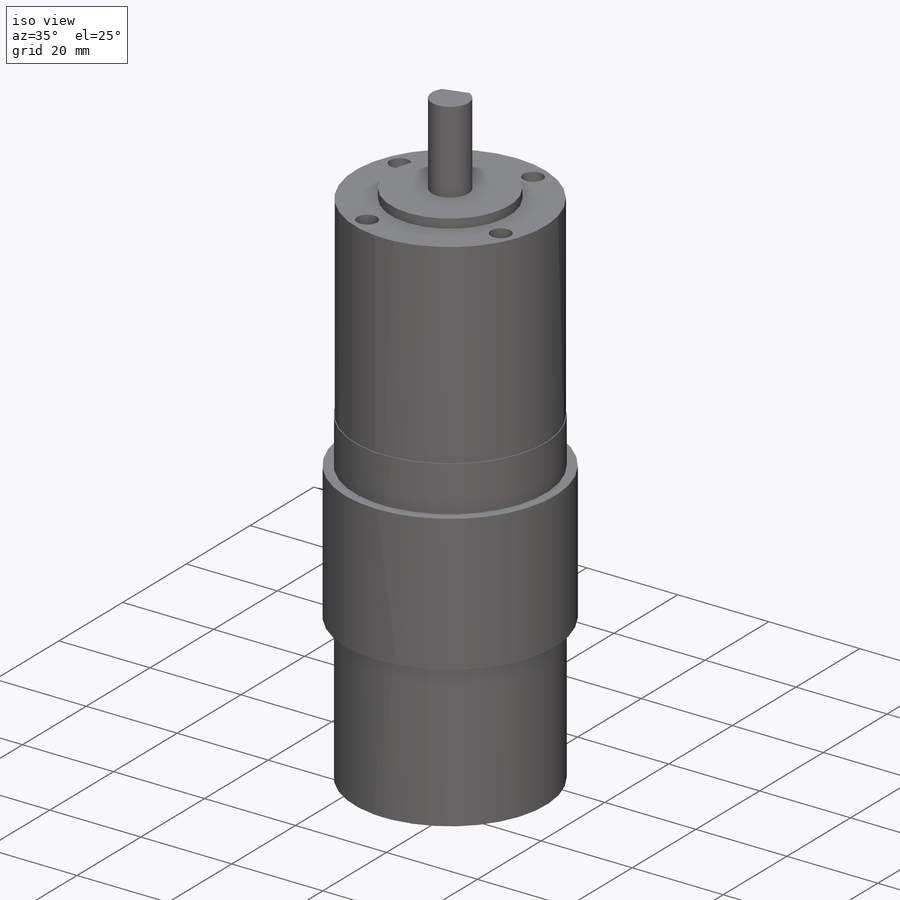
[diagram: iso view]
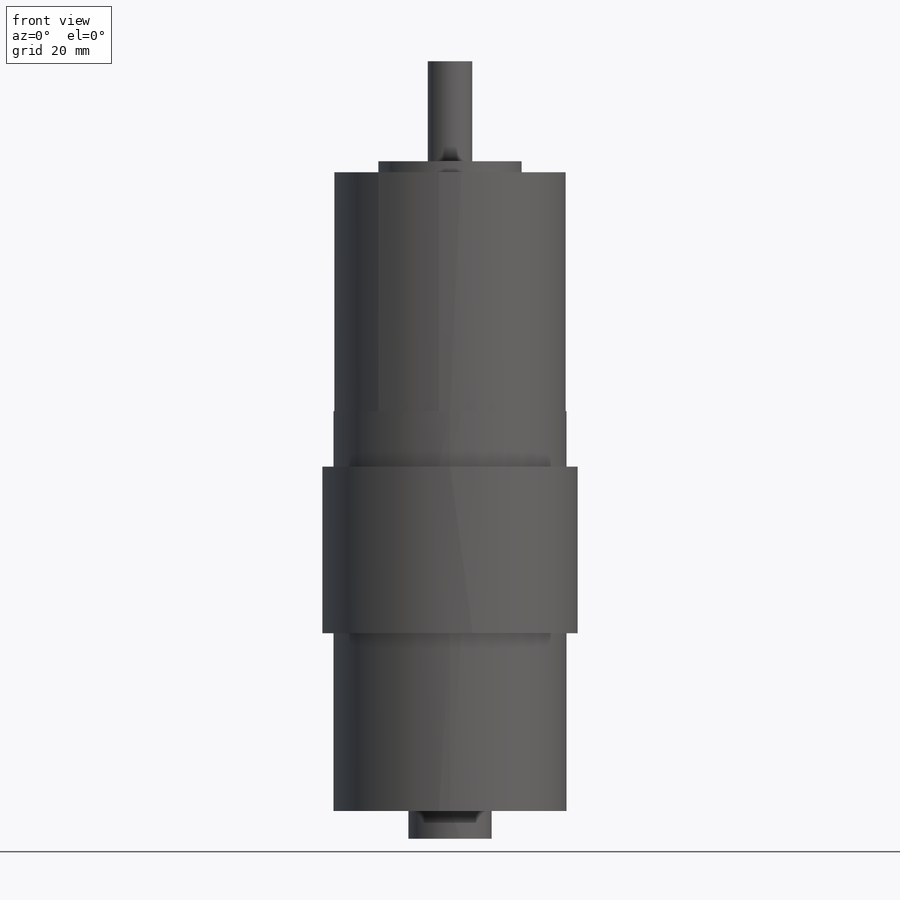
[diagram: front view]
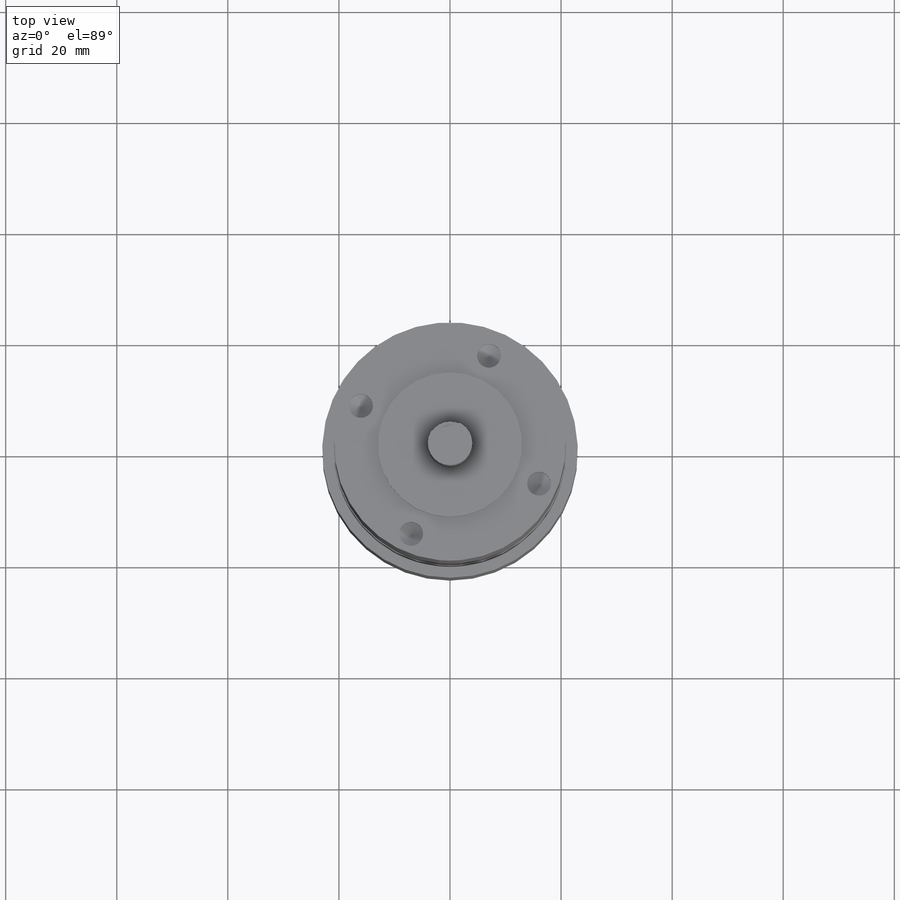
[diagram: top view]
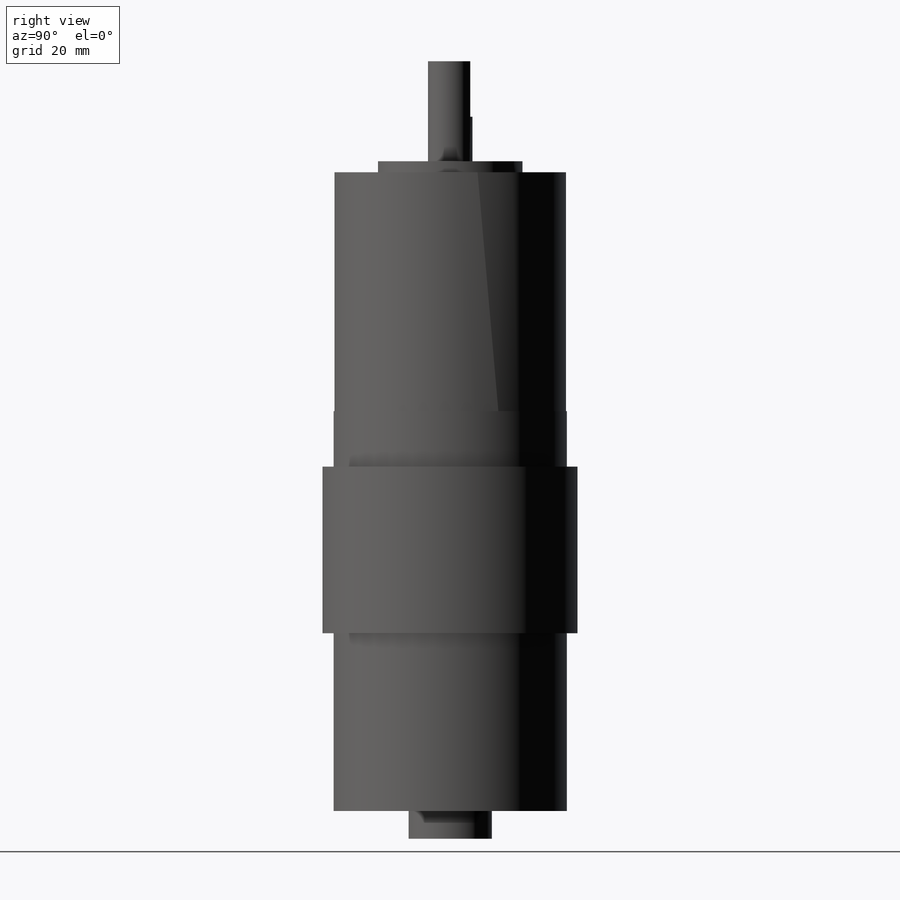
[diagram: right view]
SOLIDWORKS PART (.sldprt)
format: sldprt  version: not decoded by parser v0  size: 267,776 bytes
history: native  units: mm
features: sketch x11, extrude x6, material x1, plane x1, hole x1, pattern_circular x1, cut_extrude x1 (+13 scaffold rows collapsed)
feature tree (35):
  scaffold x13  (default folders/planes/origin — collapsed)
  material  "Material <not specified>"
  sketch  "Sketch1"  dims[D1=42.0mm]
  extrude  "Boss-Extrude1"  Depth=72mm
  plane  "Plane1"  Offset=10mm
  sketch  "Sketch3"  dims[D1=42.0mm D2=46.0mm]
  extrude  "Boss-Extrude2"  Depth=30mm
  sketch  "Sketch4"  dims[D1=41.7mm]
  extrude  "Boss-Extrude3"  Depth=43mm
  sketch  "Sketch5"  dims[D1=26.0mm]
  extrude  "Boss-Extrude4"  Depth=2mm
  sketch  "Sketch6"  dims[D1=8.0mm]
  extrude  "Boss-Extrude5"  Depth=18mm
  sketch  "Sketch8"  dims[D1=15.0mm]
  extrude  "Boss-Extrude6"  Depth=5mm
  sketch  "Sketch9"  dims[c1.D1=35.0mm c1.D2=35.0mm c1.D3=7.0mm c1.D4=7.0mm c2.D1=35.0mm c2.D4=17.5mm]
  hole  "CSK for M4 Flat Head Machine Screw1"  Diameter=4.3mm Depth=5mm
  sketch  "3DSketch1"
  sketch  "Sketch14"  dims[hole-wizard template sketch: 39 standard entries collapsed; hole parameters kept: c13.Hole Dia.=4.3mm c13.Hole Depth=5.0mm c13.Near C'Sink Dia.=5.5mm c13.D4=~33.297463mm c13.Near C'Sink Angle=90.0deg c14.D5=~14.816244mm c14.Drill Angle=118.0deg]
  pattern_circular  "CirPattern1"  Count=4 Angle=360deg
  sketch  "Sketch16"  dims[D1=4.3mm]
  sketch  "Sketch17"  dims[D1=3.0mm]
  cut_extrude  "Cut-Extrude1"  Depth=10mm
decode coverage: 19 of 20 modeling features carry decoded parameters
note: ~ marks probable driven/reference dimensions
note: suppression state not decoded; provenance and decode notes live in map.json
